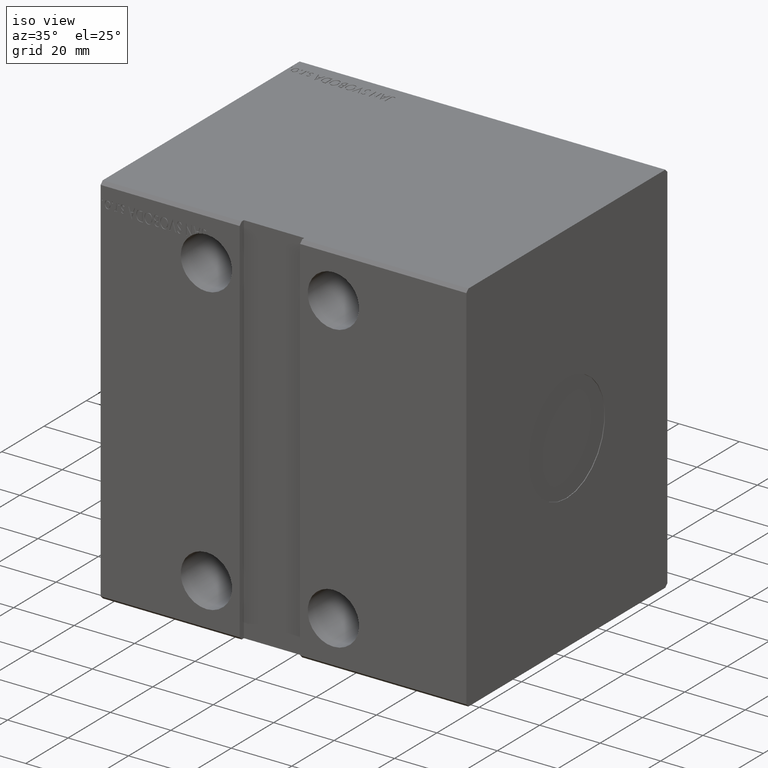
[diagram: clean part render]
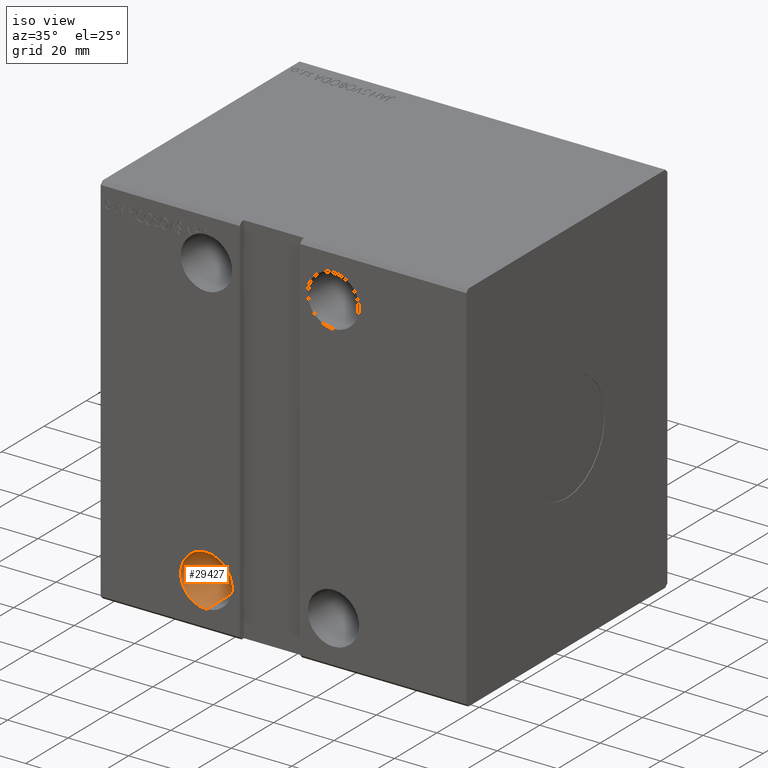
[diagram: same view with one face highlighted and labeled with its STEP entity id]
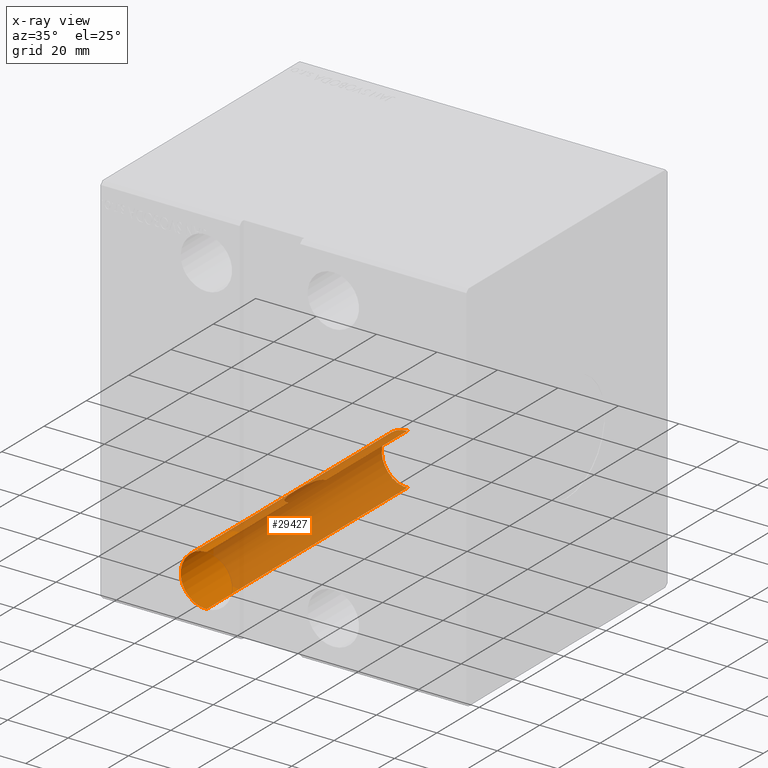
[diagram: x-ray of the same camera — body ghosted, the highlighted face saturated]
A machine part, iso view. The second image highlights one B-rep face of the part: STEP entity #29427.
The next image is the same camera in x-ray: the body ghosted, the highlighted face saturated — about 81% of this face is hidden behind the body in this view.
In plain terms, the highlighted cylindrical surface (edge-blend (fillet) strip) has radius 8.5 mm, axis along (-0, -1, -0).
Its self-contained STEP definition (entity closure, byte-faithful):
#534 = AXIS2_PLACEMENT_3D ( 'NONE', #21683, #11729, #24657 ) ;
#665 = EDGE_CURVE ( 'NONE', #6212, #16097, #36964, .T. ) ;
#1218 = CIRCLE ( 'NONE', #534, 8.500000000000003553 ) ;
#1314 = CARTESIAN_POINT ( 'NONE',  ( 32.95733738069870356, 7.721720542795547537, -39.24802279663229143 ) ) ;
#1723 = CARTESIAN_POINT ( 'NONE',  ( 31.54316470523343341, 47.29999999999999716, -55.26532611967174802 ) ) ;
#1775 = DIRECTION ( 'NONE',  ( 0.000000000000000000, 0.000000000000000000, 1.000000000000000000 ) ) ;
#2110 = VERTEX_POINT ( 'NONE', #40693 ) ;
#2147 = ORIENTED_EDGE ( 'NONE', *, *, #24324, .F. ) ;
#2149 = CARTESIAN_POINT ( 'NONE',  ( 35.00000000000000711, -8.888194417315569140, -39.00000000000000711 ) ) ;
#2315 = CARTESIAN_POINT ( 'NONE',  ( 35.00000000000000711, -47.50000000000000711, -47.50000000000001421 ) ) ;
#2319 = ORIENTED_EDGE ( 'NONE', *, *, #32991, .T. ) ;
#2355 = CARTESIAN_POINT ( 'NONE',  ( 31.01334068797262589, -0.8751396838789432531, -39.99283631293248931 ) ) ;
#2445 = AXIS2_PLACEMENT_3D ( 'NONE', #8690, #41083, #5728 ) ;
#2581 = ORIENTED_EDGE ( 'NONE', *, *, #13082, .F. ) ;
#2670 = ORIENTED_EDGE ( 'NONE', *, *, #665, .F. ) ;
#3039 = CARTESIAN_POINT ( 'NONE',  ( 35.00000000000000711, 47.50000000000003553, -47.50000000000000711 ) ) ;
#3206 = CIRCLE ( 'NONE', #8597, 8.500000000000000000 ) ;
#3361 = CARTESIAN_POINT ( 'NONE',  ( 31.80138507283863092, 47.30000000000001137, -55.37520555590396043 ) ) ;
#3527 = CARTESIAN_POINT ( 'NONE',  ( 35.00000000000000711, 47.50000000000001421, -47.50000000000000711 ) ) ;
#4147 = CARTESIAN_POINT ( 'NONE',  ( 33.56410256410256920, 47.50000000000003553, -55.87783973071717725 ) ) ;
#4692 = DIRECTION ( 'NONE',  ( -0.000000000000000000, -1.000000000000000000, -5.507058653894625853E-17 ) ) ;
#4806 = CARTESIAN_POINT ( 'NONE',  ( 33.83333333333333570, 47.50000000000003553, -55.91955396021006663 ) ) ;
#4820 = ORIENTED_EDGE ( 'NONE', *, *, #38137, .T. ) ;
#4840 = CARTESIAN_POINT ( 'NONE',  ( 35.00000000000000711, 47.50000000000003553, -47.50000000000000711 ) ) ;
#5143 = DIRECTION ( 'NONE',  ( -0.000000000000000000, -1.000000000000000000, -5.507058653894625853E-17 ) ) ;
#5224 = ORIENTED_EDGE ( 'NONE', *, *, #37368, .T. ) ;
#5324 = CARTESIAN_POINT ( 'NONE',  ( 31.28018952717590651, -3.500538506391934312, -39.85610001433710181 ) ) ;
#5533 = CARTESIAN_POINT ( 'NONE',  ( 32.37097286816661068, -6.812983839052358270, -39.41599220215405808 ) ) ;
#5660 = CARTESIAN_POINT ( 'NONE',  ( 31.80138507283863092, 47.50000000000003553, -55.37520555590396043 ) ) ;
#5728 = DIRECTION ( 'NONE',  ( 2.449021377849609992E-15, 0.000000000000000000, -1.000000000000000000 ) ) ;
#5738 = CARTESIAN_POINT ( 'NONE',  ( 33.93976231450151460, -8.601702186180727239, -39.06439139068070432 ) ) ;
#5754 = VERTEX_POINT ( 'NONE', #31031 ) ;
#5831 = CIRCLE ( 'NONE', #2445, 8.500000000000000000 ) ;
#5861 = AXIS2_PLACEMENT_3D ( 'NONE', #3039, #16774, #35631 ) ;
#6042 = CARTESIAN_POINT ( 'NONE',  ( 35.00000000000000711, -8.888194417315569140, -39.00000000000000711 ) ) ;
#6109 = DIRECTION ( 'NONE',  ( 0.000000000000000000, 0.000000000000000000, 1.000000000000000000 ) ) ;
#6211 = LINE ( 'NONE', #34782, #31753 ) ;
#6212 = VERTEX_POINT ( 'NONE', #11785 ) ;
#6608 = CARTESIAN_POINT ( 'NONE',  ( 31.54316470523343341, 47.50000000000003553, -55.26532611967174802 ) ) ;
#6759 = DIRECTION ( 'NONE',  ( -0.000000000000000000, -1.000000000000000000, -5.507058653894625853E-17 ) ) ;
#6976 = VERTEX_POINT ( 'NONE', #9905 ) ;
#7068 = ORIENTED_EDGE ( 'NONE', *, *, #8172, .F. ) ;
#7211 = DIRECTION ( 'NONE',  ( -0.000000000000000000, -1.000000000000000000, -5.507058653894625853E-17 ) ) ;
#7215 = CIRCLE ( 'NONE', #7866, 8.500000000000000000 ) ;
#7230 = VERTEX_POINT ( 'NONE', #14959 ) ;
#7474 = CARTESIAN_POINT ( 'NONE',  ( 33.09640844770643753, 7.890292373783818647, -39.21440103295969948 ) ) ;
#7561 = DIRECTION ( 'NONE',  ( 0.000000000000000000, 0.000000000000000000, 1.000000000000000000 ) ) ;
#7723 = DIRECTION ( 'NONE',  ( -0.000000000000000000, 1.000000000000000000, -0.000000000000000000 ) ) ;
#7796 = DIRECTION ( 'NONE',  ( 0.000000000000000000, 1.000000000000000000, 5.507058653894625853E-17 ) ) ;
#7866 = AXIS2_PLACEMENT_3D ( 'NONE', #14465, #33524, #1775 ) ;
#8172 = EDGE_CURVE ( 'NONE', #34936, #6212, #1218, .T. ) ;
#8230 = VERTEX_POINT ( 'NONE', #29085 ) ;
#8282 = CARTESIAN_POINT ( 'NONE',  ( 34.45171186835197119, -8.813097078647132321, -39.01705603477455497 ) ) ;
#8486 = CARTESIAN_POINT ( 'NONE',  ( 31.00000000000001776, 4.320547275526808476E-15, -40.00000000000000000 ) ) ;
#8597 = AXIS2_PLACEMENT_3D ( 'NONE', #36718, #7723, #11101 ) ;
#8690 = CARTESIAN_POINT ( 'NONE',  ( 35.00000000000000711, 47.29999999999999716, -47.50000000000000711 ) ) ;
#8914 = CARTESIAN_POINT ( 'NONE',  ( 34.77712757299228485, -8.878478442374110102, -39.00221780115114001 ) ) ;
#8996 = AXIS2_PLACEMENT_3D ( 'NONE', #40728, #37534, #27390 ) ;
#9181 = CIRCLE ( 'NONE', #19326, 8.500000000000000000 ) ;
#9485 = VERTEX_POINT ( 'NONE', #11327 ) ;
#9622 = CARTESIAN_POINT ( 'NONE',  ( 32.51565350613332583, 47.50000000000003553, -55.62883893913593170 ) ) ;
#9644 = VERTEX_POINT ( 'NONE', #19965 ) ;
#9905 = CARTESIAN_POINT ( 'NONE',  ( 29.99263530898690888, 47.50000000000003553, -54.36850048054125750 ) ) ;
#9910 = EDGE_LOOP ( 'NONE', ( #18193, #32066, #16773, #5224, #26099, #20074, #2147, #22687, #2670, #7068, #22652, #40391, #12484, #17623, #16911, #26518, #2581, #17841, #26752, #4820, #41195, #2319, #36277 ) ) ;
#10021 = CARTESIAN_POINT ( 'NONE',  ( 30.99999999999922906, 0.8750561776355639809, -39.99999999999999289 ) ) ;
#10249 = VECTOR ( 'NONE', #17040, 1000.000000000000000 ) ;
#10592 = CIRCLE ( 'NONE', #5861, 8.500000000000000000 ) ;
#10634 = DIRECTION ( 'NONE',  ( -0.000000000000000000, -1.000000000000000000, -5.507058653894625853E-17 ) ) ;
#11101 = DIRECTION ( 'NONE',  ( 0.000000000000000000, 0.000000000000000000, -1.000000000000000000 ) ) ;
#11327 = CARTESIAN_POINT ( 'NONE',  ( 30.28846153846154010, 47.50000000000003553, -54.57470178349899470 ) ) ;
#11506 = CYLINDRICAL_SURFACE ( 'NONE', #23266, 8.500000000000000000 ) ;
#11729 = DIRECTION ( 'NONE',  ( -1.711874210006961910E-12, -1.000000000000000000, 8.106832115813578724E-16 ) ) ;
#11785 = CARTESIAN_POINT ( 'NONE',  ( 33.83333333333333570, 47.29999999999968452, -55.91955396021006663 ) ) ;
#11868 = CARTESIAN_POINT ( 'NONE',  ( 32.96368527018284311, -7.729691225309598401, -39.24645151411823463 ) ) ;
#12077 = CARTESIAN_POINT ( 'NONE',  ( 33.10255778544195948, -7.897159810391356949, -39.21301165728718274 ) ) ;
#12267 = EDGE_CURVE ( 'NONE', #6976, #13232, #41186, .T. ) ;
#12484 = ORIENTED_EDGE ( 'NONE', *, *, #23225, .F. ) ;
#12819 = DIRECTION ( 'NONE',  ( -8.163404592832032979E-16, 0.000000000000000000, -1.000000000000000000 ) ) ;
#12870 = DIRECTION ( 'NONE',  ( 0.000000000000000000, -1.000000000000000000, -1.692413147294446216E-16 ) ) ;
#12992 = CARTESIAN_POINT ( 'NONE',  ( 35.00000000000000711, 47.50000000000003553, -56.00000000000000711 ) ) ;
#13082 = EDGE_CURVE ( 'NONE', #38874, #22854, #25375, .T. ) ;
#13232 = VERTEX_POINT ( 'NONE', #30634 ) ;
#13314 = LINE ( 'NONE', #39352, #21768 ) ;
#13404 = CARTESIAN_POINT ( 'NONE',  ( 33.40469418568827820, 8.205957392806936923, -39.14956226300645170 ) ) ;
#13548 = VECTOR ( 'NONE', #7211, 1000.000000000000000 ) ;
#14145 = DIRECTION ( 'NONE',  ( 0.000000000000000000, 0.000000000000000000, 1.000000000000000000 ) ) ;
#14200 = CIRCLE ( 'NONE', #37262, 8.500000000000007105 ) ;
#14222 = LINE ( 'NONE', #39635, #24835 ) ;
#14225 = CARTESIAN_POINT ( 'NONE',  ( 31.99184554558158311, 6.011549350863598207, -39.54773088821401217 ) ) ;
#14465 = CARTESIAN_POINT ( 'NONE',  ( 35.00000000000000711, 47.50000000000003553, -47.50000000000000711 ) ) ;
#14700 = EDGE_CURVE ( 'NONE', #20954, #9485, #22863, .T. ) ;
#14708 = EDGE_CURVE ( 'NONE', #17824, #16097, #40546, .T. ) ;
#14959 = CARTESIAN_POINT ( 'NONE',  ( 33.56410256410256920, 47.50000000000003553, -55.87783973071717725 ) ) ;
#15103 = EDGE_CURVE ( 'NONE', #6976, #38014, #6211, .T. ) ;
#15254 = CARTESIAN_POINT ( 'NONE',  ( 31.84355187867361892, -5.612572045631544881, -39.60652766093457444 ) ) ;
#15357 = CARTESIAN_POINT ( 'NONE',  ( 30.28846153846154010, 47.50000000000003553, -54.57470178349899470 ) ) ;
#15897 = CARTESIAN_POINT ( 'NONE',  ( 32.18849716190361221, 47.30000000000001137, -55.52156168033232575 ) ) ;
#16097 = VERTEX_POINT ( 'NONE', #35165 ) ;
#16380 = CARTESIAN_POINT ( 'NONE',  ( 32.51565350613332583, 47.29999999999999716, -55.62883893913593170 ) ) ;
#16586 = DIRECTION ( 'NONE',  ( 0.000000000000000000, 1.000000000000000000, 5.507058653894625853E-17 ) ) ;
#16773 = ORIENTED_EDGE ( 'NONE', *, *, #22377, .T. ) ;
#16774 = DIRECTION ( 'NONE',  ( -0.000000000000000000, 1.000000000000000000, 5.507058653894625853E-17 ) ) ;
#16911 = ORIENTED_EDGE ( 'NONE', *, *, #27137, .F. ) ;
#16948 = CARTESIAN_POINT ( 'NONE',  ( 31.00000000000001776, 4.320547275526808476E-15, -40.00000000000000000 ) ) ;
#17040 = DIRECTION ( 'NONE',  ( -0.000000000000000000, -1.000000000000000000, -5.507058653894625853E-17 ) ) ;
#17201 = VERTEX_POINT ( 'NONE', #23046 ) ;
#17394 = CARTESIAN_POINT ( 'NONE',  ( 34.55424423128184941, 8.848522382663713159, -39.00909019079055895 ) ) ;
#17623 = ORIENTED_EDGE ( 'NONE', *, *, #40864, .T. ) ;
#17824 = VERTEX_POINT ( 'NONE', #12992 ) ;
#17841 = ORIENTED_EDGE ( 'NONE', *, *, #36818, .T. ) ;
#18118 = DIRECTION ( 'NONE',  ( -0.000000000000000000, 1.000000000000000000, 5.507058653894625853E-17 ) ) ;
#18193 = ORIENTED_EDGE ( 'NONE', *, *, #12267, .T. ) ;
#19108 = DIRECTION ( 'NONE',  ( -0.000000000000000000, -1.000000000000000000, -5.507058653894625853E-17 ) ) ;
#19326 = AXIS2_PLACEMENT_3D ( 'NONE', #3527, #25321, #12819 ) ;
#19530 = AXIS2_PLACEMENT_3D ( 'NONE', #33792, #18118, #7561 ) ;
#19945 = CARTESIAN_POINT ( 'NONE',  ( 33.57214693437431663, 8.350890721141160711, -39.11877739182682490 ) ) ;
#19965 = CARTESIAN_POINT ( 'NONE',  ( 35.00000000000000711, 8.888194417315572693, -39.00000000000000711 ) ) ;
#20074 = ORIENTED_EDGE ( 'NONE', *, *, #21641, .T. ) ;
#20372 = CARTESIAN_POINT ( 'NONE',  ( 33.93509665507554018, 8.599058470145475752, -39.06497553941076717 ) ) ;
#20658 = VERTEX_POINT ( 'NONE', #6042 ) ;
#20954 = VERTEX_POINT ( 'NONE', #34576 ) ;
#21398 = CARTESIAN_POINT ( 'NONE',  ( 31.06814962652908818, -1.752904412375364096, -39.96398568636999471 ) ) ;
#21610 = CARTESIAN_POINT ( 'NONE',  ( 31.45160911352975930, -4.357593458878264769, -39.77088599141658420 ) ) ;
#21641 = EDGE_CURVE ( 'NONE', #2110, #5754, #14200, .T. ) ;
#21683 = CARTESIAN_POINT ( 'NONE',  ( 35.00000000000000711, 47.29999999999768079, -47.50000000000000711 ) ) ;
#21768 = VECTOR ( 'NONE', #6759, 1000.000000000000000 ) ;
#22201 = CARTESIAN_POINT ( 'NONE',  ( 31.80138507283863092, 47.50000000000003553, -55.37520555590396043 ) ) ;
#22377 = EDGE_CURVE ( 'NONE', #9644, #34322, #25680, .T. ) ;
#22646 = EDGE_CURVE ( 'NONE', #36579, #41307, #36620, .T. ) ;
#22652 = ORIENTED_EDGE ( 'NONE', *, *, #39433, .F. ) ;
#22687 = ORIENTED_EDGE ( 'NONE', *, *, #14708, .T. ) ;
#22854 = VERTEX_POINT ( 'NONE', #5660 ) ;
#22863 = LINE ( 'NONE', #15357, #22994 ) ;
#22994 = VECTOR ( 'NONE', #7796, 1000.000000000000000 ) ;
#23046 = CARTESIAN_POINT ( 'NONE',  ( 32.18849716190361931, 47.50000000000001421, -55.52156168033233286 ) ) ;
#23150 = CARTESIAN_POINT ( 'NONE',  ( 31.84034224388072332, 5.603247014670987625, -39.60782839838529412 ) ) ;
#23225 = EDGE_CURVE ( 'NONE', #26932, #8230, #29295, .T. ) ;
#23266 = AXIS2_PLACEMENT_3D ( 'NONE', #27612, #40521, #24433 ) ;
#24129 = VECTOR ( 'NONE', #40365, 1000.000000000000000 ) ;
#24324 = EDGE_CURVE ( 'NONE', #17824, #5754, #30966, .T. ) ;
#24433 = DIRECTION ( 'NONE',  ( 0.000000000000000000, 0.000000000000000000, -1.000000000000000000 ) ) ;
#24616 = CARTESIAN_POINT ( 'NONE',  ( 35.00000000000000711, 47.50000000000003553, -56.00000000000000711 ) ) ;
#24657 = DIRECTION ( 'NONE',  ( -1.000000000000000000, 1.711865943116876783E-12, 1.959217102279687047E-14 ) ) ;
#24789 = CARTESIAN_POINT ( 'NONE',  ( 32.70681071213223134, -7.377903018384849965, -39.31410217644515370 ) ) ;
#24835 = VECTOR ( 'NONE', #10634, 1000.000000000000000 ) ;
#25265 = CARTESIAN_POINT ( 'NONE',  ( 29.99263530898690888, 47.30000000000001137, -54.36850048054125750 ) ) ;
#25321 = DIRECTION ( 'NONE',  ( -0.000000000000000000, 1.000000000000000000, 1.128275431529630729E-16 ) ) ;
#25375 = LINE ( 'NONE', #22201, #36457 ) ;
#25680 = B_SPLINE_CURVE_WITH_KNOTS ( 'NONE', 3,
 ( #26536, #33090, #17394, #30324, #20372, #19945, #13404, #7474, #1314, #36254, #26737, #14225, #23150, #39850, #33292, #27155, #10021, #26330 ),
 .UNSPECIFIED., .F., .F.,
 ( 4, 2, 2, 2, 2, 2, 2, 2, 4 ),
 ( 0.01046234158790427041, 0.01111195125521926078, 0.01176156092253424941, 0.01241117058984923804, 0.01306078025716422841, 0.01435999959179420742, 0.01565921892642418642, 0.01825765759568414096, 0.02085609626494409549 ),
 .UNSPECIFIED. ) ;
#25681 = AXIS2_PLACEMENT_3D ( 'NONE', #4840, #27279, #14145 ) ;
#26099 = ORIENTED_EDGE ( 'NONE', *, *, #31784, .T. ) ;
#26330 = CARTESIAN_POINT ( 'NONE',  ( 31.00000000000001776, 4.320547275526808476E-15, -40.00000000000000000 ) ) ;
#26518 = ORIENTED_EDGE ( 'NONE', *, *, #31410, .T. ) ;
#26536 = CARTESIAN_POINT ( 'NONE',  ( 35.00000000000000711, 8.888194417315572693, -39.00000000000000711 ) ) ;
#26737 = CARTESIAN_POINT ( 'NONE',  ( 32.35749870789388183, 6.805507322899399192, -39.41886368329797818 ) ) ;
#26752 = ORIENTED_EDGE ( 'NONE', *, *, #22646, .F. ) ;
#26932 = VERTEX_POINT ( 'NONE', #16380 ) ;
#26990 = LINE ( 'NONE', #4147, #10249 ) ;
#27137 = EDGE_CURVE ( 'NONE', #17201, #34687, #13314, .T. ) ;
#27155 = CARTESIAN_POINT ( 'NONE',  ( 31.05225755694951317, 1.746770409802224311, -39.97130752758187811 ) ) ;
#27236 = CIRCLE ( 'NONE', #8996, 8.500000000000000000 ) ;
#27279 = DIRECTION ( 'NONE',  ( -0.000000000000000000, 1.000000000000000000, 5.507058653894625853E-17 ) ) ;
#27390 = DIRECTION ( 'NONE',  ( 4.081702296416016786E-15, 0.000000000000000000, -1.000000000000000000 ) ) ;
#27612 = CARTESIAN_POINT ( 'NONE',  ( 35.00000000000000711, 47.50000000000003553, -47.50000000000000711 ) ) ;
#27757 = VECTOR ( 'NONE', #16586, 1000.000000000000000 ) ;
#27760 = CARTESIAN_POINT ( 'NONE',  ( 34.88947585469833257, -8.888194417315560258, -39.00000000000000711 ) ) ;
#28175 = CARTESIAN_POINT ( 'NONE',  ( 32.27182239767302008, -6.618623539690005053, -39.44913252582586694 ) ) ;
#29085 = CARTESIAN_POINT ( 'NONE',  ( 32.51565350613332583, 47.50000000000003553, -55.62883893913593170 ) ) ;
#29295 = LINE ( 'NONE', #9622, #27757 ) ;
#29427 = ADVANCED_FACE ( 'NONE', ( #40734 ), #11506, .F. ) ;
#30324 = CARTESIAN_POINT ( 'NONE',  ( 34.13479476889374098, 8.704262351708150547, -39.04153279242975572 ) ) ;
#30634 = CARTESIAN_POINT ( 'NONE',  ( 35.00000000000000711, 47.50000000000003553, -39.00000000000000711 ) ) ;
#30723 = CARTESIAN_POINT ( 'NONE',  ( 31.10980483652023310, -2.193571123626138153, -39.94219404680328722 ) ) ;
#30966 = LINE ( 'NONE', #24616, #41299 ) ;
#31031 = CARTESIAN_POINT ( 'NONE',  ( 35.00000000000000711, -47.50000000000000711, -56.00000000000002132 ) ) ;
#31142 = CARTESIAN_POINT ( 'NONE',  ( 34.55843943076691716, -8.840818478083484422, -39.01077160859178150 ) ) ;
#31355 = CARTESIAN_POINT ( 'NONE',  ( 34.13859483857217469, -8.705886128782134747, -39.04116947103749169 ) ) ;
#31410 = EDGE_CURVE ( 'NONE', #17201, #22854, #9181, .T. ) ;
#31753 = VECTOR ( 'NONE', #19108, 1000.000000000000000 ) ;
#31784 = EDGE_CURVE ( 'NONE', #20658, #2110, #14222, .T. ) ;
#32066 = ORIENTED_EDGE ( 'NONE', *, *, #38195, .T. ) ;
#32991 = EDGE_CURVE ( 'NONE', #20954, #38014, #3206, .T. ) ;
#33076 = LINE ( 'NONE', #39420, #39002 ) ;
#33090 = CARTESIAN_POINT ( 'NONE',  ( 34.77886755181009448, 8.888194417315562035, -39.00000000000000711 ) ) ;
#33292 = CARTESIAN_POINT ( 'NONE',  ( 31.27718047947745816, 3.482741801787012204, -39.85758575065943177 ) ) ;
#33524 = DIRECTION ( 'NONE',  ( -0.000000000000000000, 1.000000000000000000, 5.507058653894625853E-17 ) ) ;
#33792 = CARTESIAN_POINT ( 'NONE',  ( 35.00000000000000711, 47.50000000000003553, -47.50000000000000711 ) ) ;
#34322 = VERTEX_POINT ( 'NONE', #16948 ) ;
#34525 = CARTESIAN_POINT ( 'NONE',  ( 31.99713873928057595, -6.024669445494585496, -39.54572412377564916 ) ) ;
#34576 = CARTESIAN_POINT ( 'NONE',  ( 30.28846153846154010, 47.30000000000001137, -54.57470178349899470 ) ) ;
#34687 = VERTEX_POINT ( 'NONE', #15897 ) ;
#34731 = CARTESIAN_POINT ( 'NONE',  ( 33.57710676253643101, -8.354814138639573784, -39.11793752145969449 ) ) ;
#34782 = CARTESIAN_POINT ( 'NONE',  ( 29.99263530898690888, 47.50000000000003553, -54.36850048054125750 ) ) ;
#34936 = VERTEX_POINT ( 'NONE', #38090 ) ;
#35110 = DIRECTION ( 'NONE',  ( 0.000000000000000000, 1.000000000000000000, 5.507058653894625853E-17 ) ) ;
#35165 = CARTESIAN_POINT ( 'NONE',  ( 33.83333333333333570, 47.50000000000003553, -55.91955396021006663 ) ) ;
#35631 = DIRECTION ( 'NONE',  ( 0.000000000000000000, 0.000000000000000000, 1.000000000000000000 ) ) ;
#36254 = CARTESIAN_POINT ( 'NONE',  ( 32.57256012174860160, 7.192548791584959744, -39.34966693918345015 ) ) ;
#36277 = ORIENTED_EDGE ( 'NONE', *, *, #15103, .F. ) ;
#36457 = VECTOR ( 'NONE', #35110, 1000.000000000000000 ) ;
#36579 = VERTEX_POINT ( 'NONE', #6608 ) ;
#36620 = LINE ( 'NONE', #39174, #13548 ) ;
#36718 = CARTESIAN_POINT ( 'NONE',  ( 35.00000000000000711, 47.30000000000001137, -47.50000000000000711 ) ) ;
#36818 = EDGE_CURVE ( 'NONE', #38874, #41307, #5831, .T. ) ;
#36964 = LINE ( 'NONE', #4806, #24129 ) ;
#37262 = AXIS2_PLACEMENT_3D ( 'NONE', #2315, #12870, #6109 ) ;
#37368 = EDGE_CURVE ( 'NONE', #34322, #20658, #40532, .T. ) ;
#37534 = DIRECTION ( 'NONE',  ( 0.000000000000000000, 1.000000000000000000, -0.000000000000000000 ) ) ;
#37693 = CARTESIAN_POINT ( 'NONE',  ( 30.99999999999922196, -0.4371452684178733228, -40.00000000000000711 ) ) ;
#37896 = EDGE_CURVE ( 'NONE', #7230, #8230, #7215, .T. ) ;
#37909 = CARTESIAN_POINT ( 'NONE',  ( 33.40871134463456826, -8.209480517395405741, -39.14881666078687772 ) ) ;
#38014 = VERTEX_POINT ( 'NONE', #25265 ) ;
#38090 = CARTESIAN_POINT ( 'NONE',  ( 33.56410256410256920, 47.30000000000013927, -55.87783973071717725 ) ) ;
#38137 = EDGE_CURVE ( 'NONE', #36579, #9485, #10592, .T. ) ;
#38195 = EDGE_CURVE ( 'NONE', #13232, #9644, #33076, .T. ) ;
#38874 = VERTEX_POINT ( 'NONE', #3361 ) ;
#39002 = VECTOR ( 'NONE', #4692, 1000.000000000000000 ) ;
#39174 = CARTESIAN_POINT ( 'NONE',  ( 31.54316470523343341, 47.50000000000003553, -55.26532611967174802 ) ) ;
#39352 = CARTESIAN_POINT ( 'NONE',  ( 32.18849716190361221, 47.50000000000003553, -55.52156168033232575 ) ) ;
#39420 = CARTESIAN_POINT ( 'NONE',  ( 35.00000000000000711, 47.50000000000003553, -39.00000000000000711 ) ) ;
#39433 = EDGE_CURVE ( 'NONE', #7230, #34936, #26990, .T. ) ;
#39635 = CARTESIAN_POINT ( 'NONE',  ( 35.00000000000000711, 47.50000000000003553, -39.00000000000000711 ) ) ;
#39850 = CARTESIAN_POINT ( 'NONE',  ( 31.45100102384058260, 4.353716322937175143, -39.77123262300046491 ) ) ;
#40365 = DIRECTION ( 'NONE',  ( 0.000000000000000000, 1.000000000000000000, 5.507058653894625853E-17 ) ) ;
#40391 = ORIENTED_EDGE ( 'NONE', *, *, #37896, .T. ) ;
#40521 = DIRECTION ( 'NONE',  ( -0.000000000000000000, -1.000000000000000000, -5.507058653894625853E-17 ) ) ;
#40532 = B_SPLINE_CURVE_WITH_KNOTS ( 'NONE', 3,
 ( #8486, #37693, #2355, #21398, #30723, #5324, #21610, #15254, #34525, #28175, #5533, #40887, #24789, #11868, #12077, #37909, #34731, #5738, #31355, #8282, #31142, #8914, #27760, #2149 ),
 .UNSPECIFIED., .F., .F.,
 ( 4, 2, 2, 2, 2, 2, 2, 2, 2, 2, 2, 4 ),
 ( 0.02085609626494409549, 0.02215417883218043574, 0.02345226139941677598, 0.02604842653388945647, 0.02734650910112579672, 0.02799555038474397378, 0.02864459166836214737, 0.02929363295198032791, 0.02994267423559850150, 0.03059171551921668203, 0.03091623616102576882, 0.03124075680283485909 ),
 .UNSPECIFIED. ) ;
#40546 = CIRCLE ( 'NONE', #25681, 8.500000000000000000 ) ;
#40693 = CARTESIAN_POINT ( 'NONE',  ( 35.00000000000000711, -47.50000000000000711, -39.00000000000000711 ) ) ;
#40728 = CARTESIAN_POINT ( 'NONE',  ( 35.00000000000000711, 47.29999999999999716, -47.50000000000000711 ) ) ;
#40734 = FACE_OUTER_BOUND ( 'NONE', #9910, .T. ) ;
#40864 = EDGE_CURVE ( 'NONE', #26932, #34687, #27236, .T. ) ;
#40887 = CARTESIAN_POINT ( 'NONE',  ( 32.58846641846847092, -7.192721627606849744, -39.34846814882652666 ) ) ;
#41083 = DIRECTION ( 'NONE',  ( 0.000000000000000000, 1.000000000000000000, -0.000000000000000000 ) ) ;
#41186 = CIRCLE ( 'NONE', #19530, 8.500000000000000000 ) ;
#41195 = ORIENTED_EDGE ( 'NONE', *, *, #14700, .F. ) ;
#41299 = VECTOR ( 'NONE', #5143, 1000.000000000000000 ) ;
#41307 = VERTEX_POINT ( 'NONE', #1723 ) ;